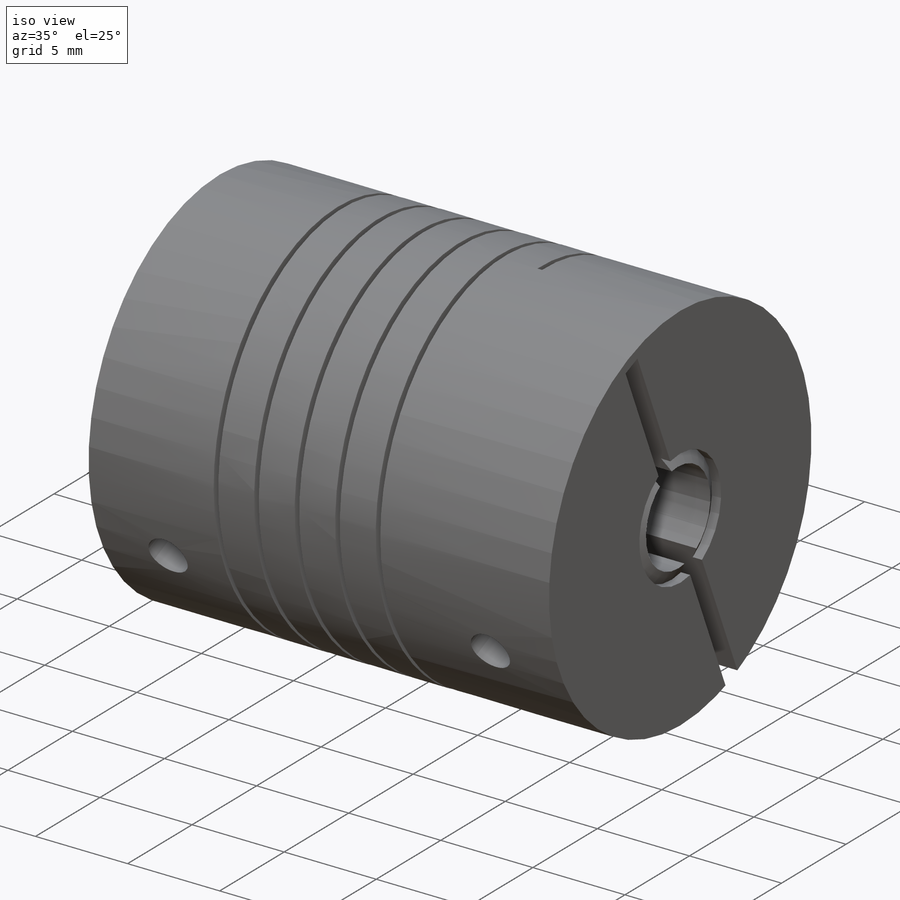
[diagram: iso view]
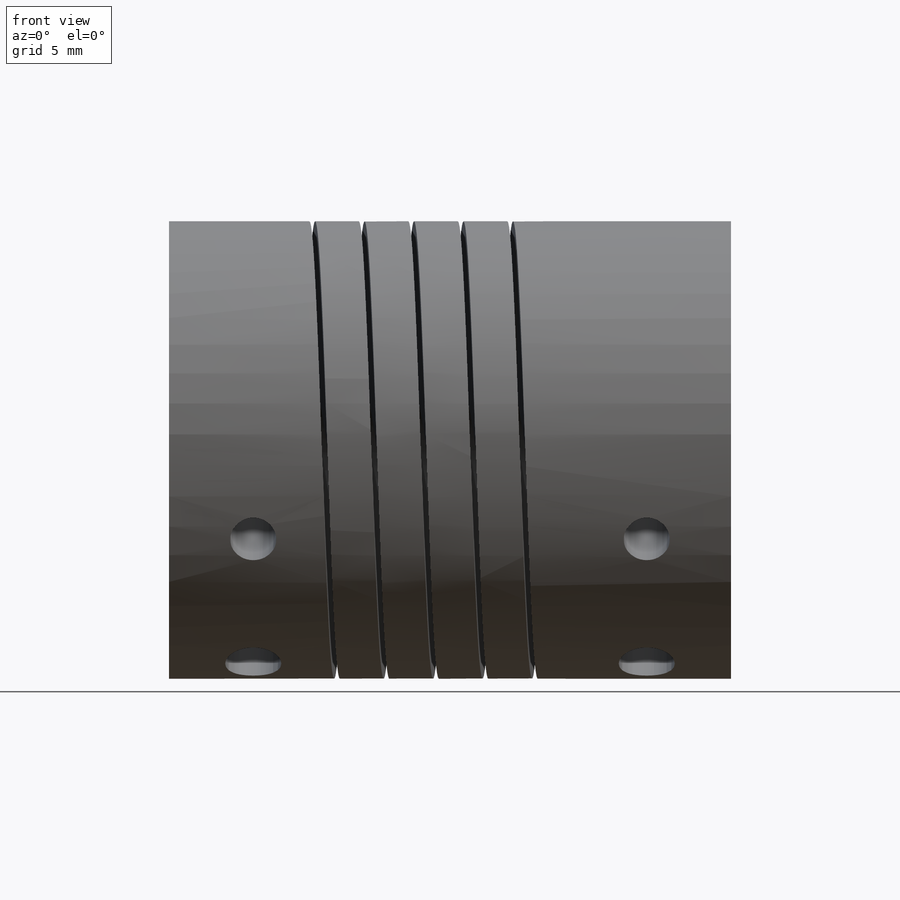
[diagram: front view]
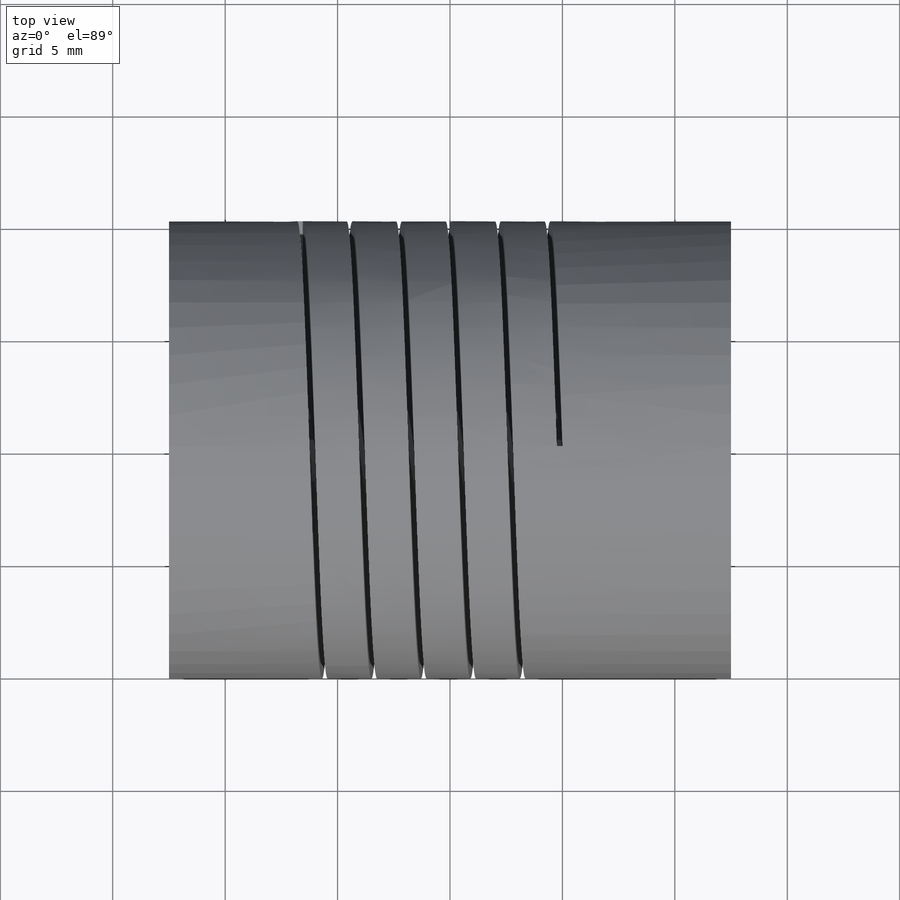
[diagram: top view]
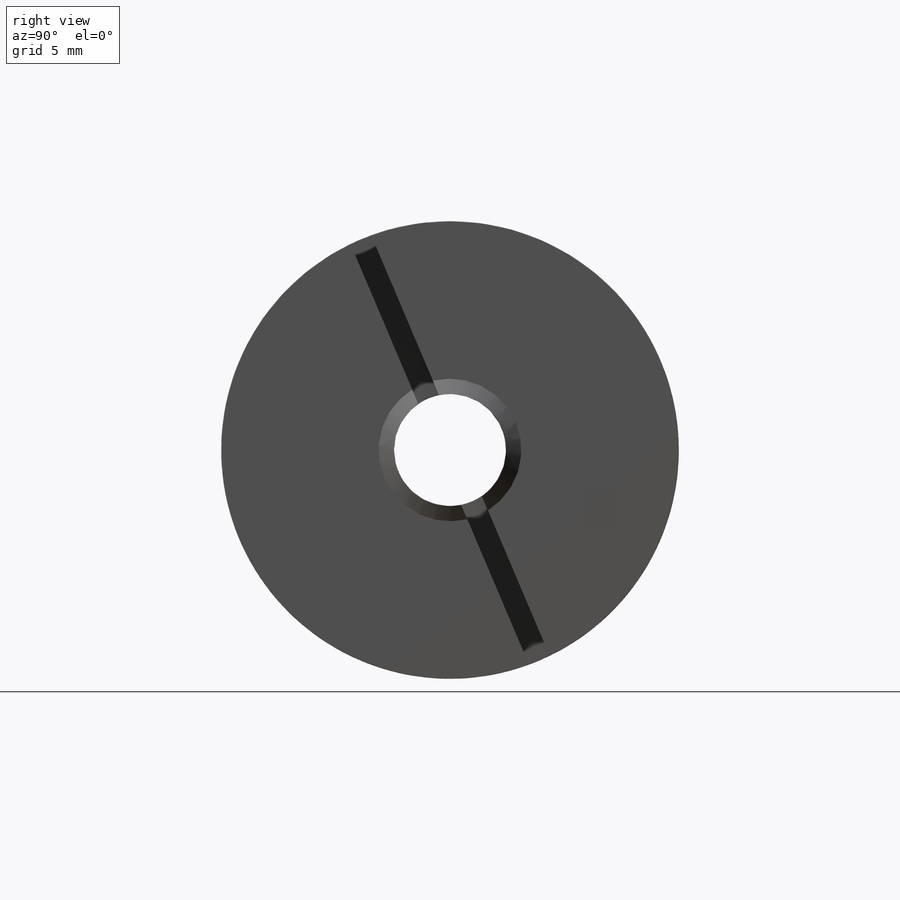
[diagram: right view]
SOLIDWORKS PART (.sldprt)
format: sldprt  version: not decoded by parser v0  size: 567,296 bytes
history: native  units: mm
features: sketch x11, plane x6, hole x3, cut_extrude x2, material x1, revolve x1, helix x1, sweep x1, mirror x1 (+10 scaffold rows collapsed)
feature tree (37):
  scaffold x10  (default folders/planes/origin — collapsed)
  material  "5052-H32"
  plane  "Plano frontal"
  plane  "Plano superior"
  plane  "Plano direito"
  sketch  "Esboço1"  dims[c1.D1=25.0mm c1.D2=7.0mm c1.D3=2.5mm c1.D4=3.175mm c1.D5=0.825mm c2.D5=60.0deg c2.D6=0.5mm c2.D7=~21.822764mm]
  revolve  "Revolução1"  Angle=360deg
  plane  "Plano1"  Offset=7.5mm
  sketch  "Esboço2"
  helix  "Hélice/Espiral1"  Pitch=11.55mm
  sketch  "Esboço4"  dims[D1=0.25mm]
  sweep  "Varredura de corte1"
  plane  "Plano4"
  hole  "Furo roscado de M2.51"  Diameter=2.05mm Depth=7.675mm
  sketch  "3DSketch1"  dims[c1.D2=20.35mm c1.D1=17.5mm c2.D2=~16.489676mm c2.D3=~16.489676mm c3.D2=8.75mm]
  sketch  "Esboço5"  dims[hole-wizard template sketch: 59 standard entries collapsed; hole parameters kept: c18.Thread Major Dia.=2.05mm c18.Thru Tap Drill Depth=7.675mm]
  plane  "Plano5"
  sketch  "Esboço8"  dims[c1.D1=6.0mm c1.D2=6.0mm c1.D3=6.0mm c1.D4=6.0mm c2.D2=17.5mm c2.D3=8.75mm c2.D4=17.5mm]
  cut_extrude  "Corte-extrusão1"  Depth=3mm
  sketch  "Esboço10"  dims[D1=1.0mm D2=0.5mm]
  cut_extrude  "Corte-extrusão2"  [1 undecoded]
  mirror  "Espelhar1"
  hole  "Rebaixo para parafuso com cabeça panela de M2.51"  Diameter=2.9mm Depth=6.675mm
  sketch  "Esboço13"
  sketch  "Esboço12"  dims[hole-wizard template sketch: 42 standard entries collapsed; hole parameters kept: c12.Thru Hole Depth=6.675mm c12.C'Bore Dia.=6.0mm c12.C'Bore Depth=2.1mm]
  hole  "Furo roscado de M32"  Diameter=2.5mm Depth=6.562223mm
  sketch  "Esboço15"
  sketch  "Esboço14"  dims[hole-wizard template sketch: 60 standard entries collapsed; hole parameters kept: c18.Thru Tap Drill Depth=~6.562223mm]
decode coverage: 14 of 20 modeling features carry decoded parameters
note: ~ marks probable driven/reference dimensions
note: 1 parameter value undecoded
note: suppression state not decoded; provenance and decode notes live in map.json
